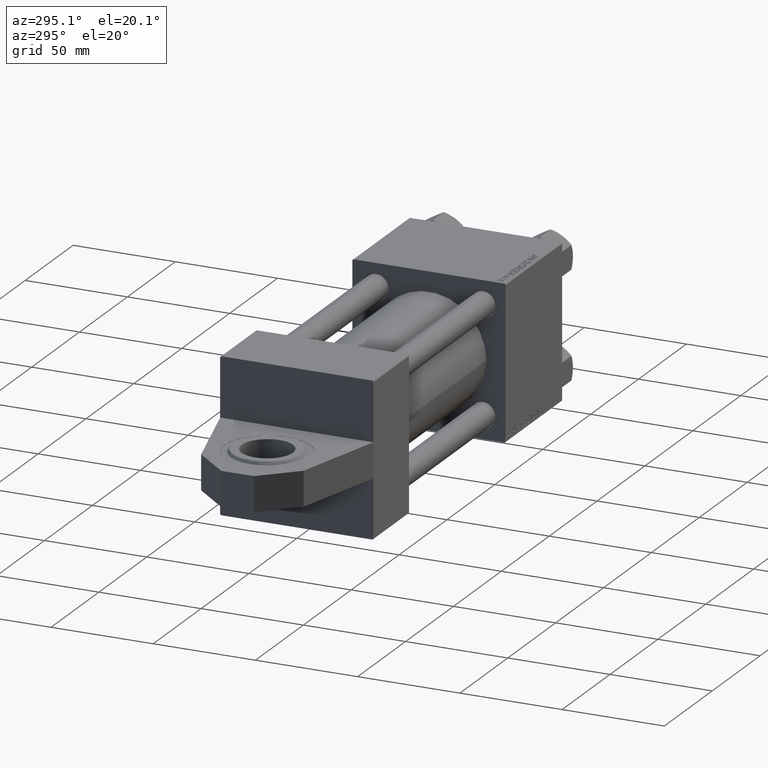
[diagram: clean part render]
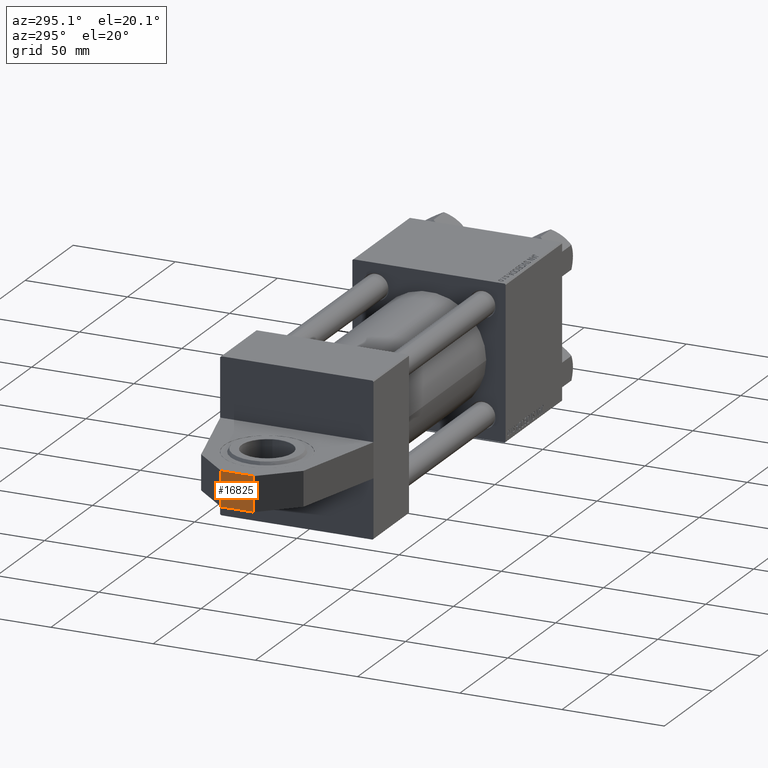
[diagram: same view with one face highlighted and labeled with its STEP entity id]
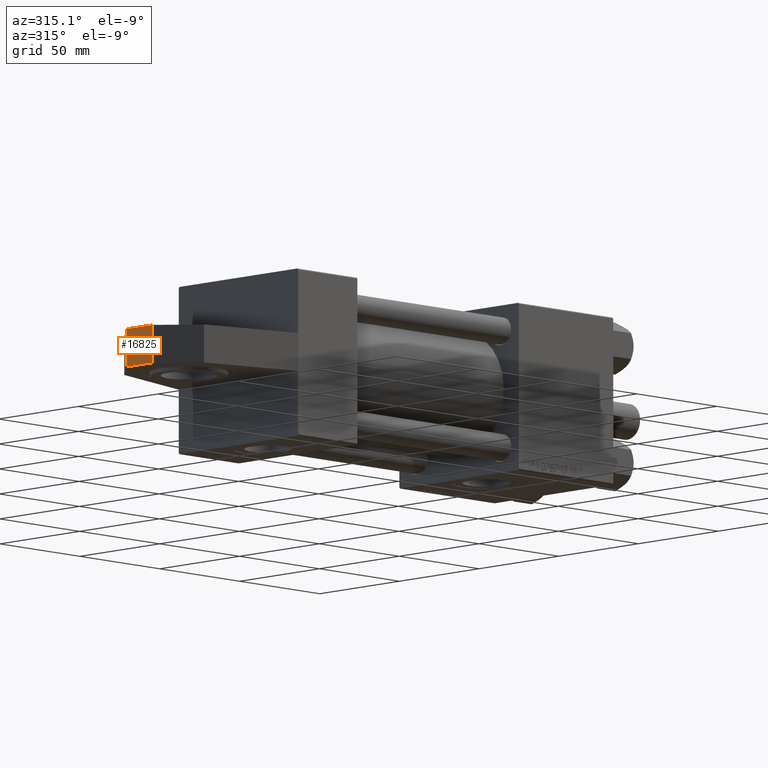
[diagram: same view with one face highlighted and labeled with its STEP entity id]
A machine part, auxiliary view. The second image highlights one B-rep face of the part: STEP entity #16825.
A second angle (auxiliary view) of the same face is appended — the face is thin or edge-on in the first view.
In plain terms, the highlighted planar face has unit normal (-1, 0, 0).
Its self-contained STEP definition (entity closure, byte-faithful):
#2643 = CARTESIAN_POINT ( 'NONE',  ( -62.00000000000000000, -8.500000000000000000, -8.000000000000001776 ) ) ;
#3801 = VERTEX_POINT ( 'NONE', #20172 ) ;
#3941 = VERTEX_POINT ( 'NONE', #47044 ) ;
#4276 = CARTESIAN_POINT ( 'NONE',  ( -62.00000000000000000, -8.500000000000000000, -8.000000000000001776 ) ) ;
#5341 = VECTOR ( 'NONE', #27791, 1000.000000000000000 ) ;
#6729 = DIRECTION ( 'NONE',  ( 0.000000000000000000, 0.000000000000000000, 1.000000000000000000 ) ) ;
#7079 = DIRECTION ( 'NONE',  ( 0.000000000000000000, 0.000000000000000000, 1.000000000000000000 ) ) ;
#8343 = EDGE_CURVE ( 'NONE', #3941, #31497, #38076, .T. ) ;
#10325 = VECTOR ( 'NONE', #20397, 1000.000000000000000 ) ;
#10521 = VECTOR ( 'NONE', #7079, 1000.000000000000000 ) ;
#11692 = LINE ( 'NONE', #4276, #5341 ) ;
#13495 = EDGE_LOOP ( 'NONE', ( #44286, #22996, #36798, #21611 ) ) ;
#14145 = FACE_OUTER_BOUND ( 'NONE', #13495, .T. ) ;
#14910 = AXIS2_PLACEMENT_3D ( 'NONE', #2643, #30018, #6729 ) ;
#16825 = ADVANCED_FACE ( 'NONE', ( #14145 ), #38225, .T. ) ;
#20172 = CARTESIAN_POINT ( 'NONE',  ( -62.00000000000000000, -8.500000000000000000, 7.999999999999998224 ) ) ;
#20397 = DIRECTION ( 'NONE',  ( 0.000000000000000000, 0.000000000000000000, 1.000000000000000000 ) ) ;
#21611 = ORIENTED_EDGE ( 'NONE', *, *, #23036, .T. ) ;
#22469 = CARTESIAN_POINT ( 'NONE',  ( -62.00000000000000000, -8.500000000000000000, 7.999999999999998224 ) ) ;
#22996 = ORIENTED_EDGE ( 'NONE', *, *, #27341, .F. ) ;
#23036 = EDGE_CURVE ( 'NONE', #3801, #31497, #48886, .T. ) ;
#25731 = CARTESIAN_POINT ( 'NONE',  ( -62.00000000000000000, -8.500000000000000000, -8.000000000000001776 ) ) ;
#27341 = EDGE_CURVE ( 'NONE', #27449, #3941, #11692, .T. ) ;
#27449 = VERTEX_POINT ( 'NONE', #25731 ) ;
#27791 = DIRECTION ( 'NONE',  ( 0.000000000000000000, 1.000000000000000000, 0.000000000000000000 ) ) ;
#27815 = LINE ( 'NONE', #31919, #10325 ) ;
#30018 = DIRECTION ( 'NONE',  ( -1.000000000000000000, 0.000000000000000000, 0.000000000000000000 ) ) ;
#31497 = VERTEX_POINT ( 'NONE', #40206 ) ;
#31919 = CARTESIAN_POINT ( 'NONE',  ( -62.00000000000000000, -8.500000000000000000, -8.000000000000001776 ) ) ;
#32995 = DIRECTION ( 'NONE',  ( 0.000000000000000000, 1.000000000000000000, 0.000000000000000000 ) ) ;
#34276 = EDGE_CURVE ( 'NONE', #27449, #3801, #27815, .T. ) ;
#36798 = ORIENTED_EDGE ( 'NONE', *, *, #34276, .T. ) ;
#38076 = LINE ( 'NONE', #42178, #10521 ) ;
#38225 = PLANE ( 'NONE',  #14910 ) ;
#40206 = CARTESIAN_POINT ( 'NONE',  ( -62.00000000000000000, 8.500000000000000000, 7.999999999999998224 ) ) ;
#42178 = CARTESIAN_POINT ( 'NONE',  ( -62.00000000000000000, 8.500000000000000000, -8.000000000000001776 ) ) ;
#44286 = ORIENTED_EDGE ( 'NONE', *, *, #8343, .F. ) ;
#47044 = CARTESIAN_POINT ( 'NONE',  ( -62.00000000000000000, 8.500000000000000000, -8.000000000000001776 ) ) ;
#48886 = LINE ( 'NONE', #22469, #50196 ) ;
#50196 = VECTOR ( 'NONE', #32995, 1000.000000000000000 ) ;